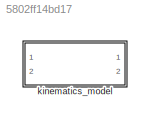
MODEL slx_5802ff14bd17
KIND model
CONFIG AbsTol = auto
CONFIG EnableMultiTasking = off
CONFIG FixedStep = auto
CONFIG MaxStep = auto
CONFIG MinStep = auto
CONFIG RelTol = 1e-3
CONFIG SampleTimeConstraint = Unconstrained
CONFIG Solver = VariableStepAuto
CONFIG SolverName = VariableStepAuto
CONFIG StartTime = 0.0
CONFIG StopTime = 10.0
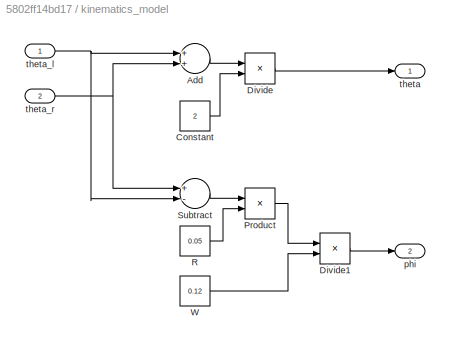
BLOCK [SubSystem] kinematics_model
  Ports = [2, 2]
  RequestExecContextInheritance = off
BLOCK [Sum] kinematics_model/Add
  InputSameDT = off
  OutDataTypeStr = Inherit: Inherit via internal rule
  Ports = [2, 1]
  SaturateOnIntegerOverflow = off
BLOCK [Constant] kinematics_model/Constant
  Value = 2
BLOCK [Product] kinematics_model/Divide
  InputSameDT = off
  Inputs = */
  OutDataTypeStr = Inherit: Inherit via internal rule
  Ports = [2, 1]
  RndMeth = Floor
  SaturateOnIntegerOverflow = off
BLOCK [Product] kinematics_model/Divide1
  InputSameDT = off
  Inputs = */
  OutDataTypeStr = Inherit: Inherit via internal rule
  Ports = [2, 1]
  RndMeth = Floor
  SaturateOnIntegerOverflow = off
BLOCK [Product] kinematics_model/Product
  InputSameDT = off
  OutDataTypeStr = Inherit: Inherit via internal rule
  Ports = [2, 1]
  RndMeth = Floor
  SaturateOnIntegerOverflow = off
BLOCK [Constant] kinematics_model/R
  Value = 0.05
BLOCK [Sum] kinematics_model/Subtract
  InputSameDT = off
  Inputs = +-
  OutDataTypeStr = Inherit: Inherit via internal rule
  Ports = [2, 1]
  SaturateOnIntegerOverflow = off
BLOCK [Constant] kinematics_model/W
  Value = 0.12
BLOCK [Outport] kinematics_model/phi
  IconDisplay = Port number
  Port = 2
BLOCK [Outport] kinematics_model/theta
  IconDisplay = Port number
BLOCK [Inport] kinematics_model/theta_l
  IconDisplay = Port number
BLOCK [Inport] kinematics_model/theta_r
  IconDisplay = Port number
  Port = 2
LINE kinematics_model/Add:1 -> kinematics_model/Divide:1
LINE kinematics_model/Constant:1 -> kinematics_model/Divide:2
LINE kinematics_model/Divide1:1 -> kinematics_model/phi:1
LINE kinematics_model/Divide:1 -> kinematics_model/theta:1
LINE kinematics_model/Product:1 -> kinematics_model/Divide1:1
LINE kinematics_model/R:1 -> kinematics_model/Product:2
LINE kinematics_model/Subtract:1 -> kinematics_model/Product:1
LINE kinematics_model/W:1 -> kinematics_model/Divide1:2
NET kinematics_model/theta_l:1 -> kinematics_model/Add:1, kinematics_model/Subtract:2
NET kinematics_model/theta_r:1 -> kinematics_model/Add:2, kinematics_model/Subtract:1
note: NET lines group one-source signal fan-out (src -> all destinations, sorted); 1:1 wires keep LINE
